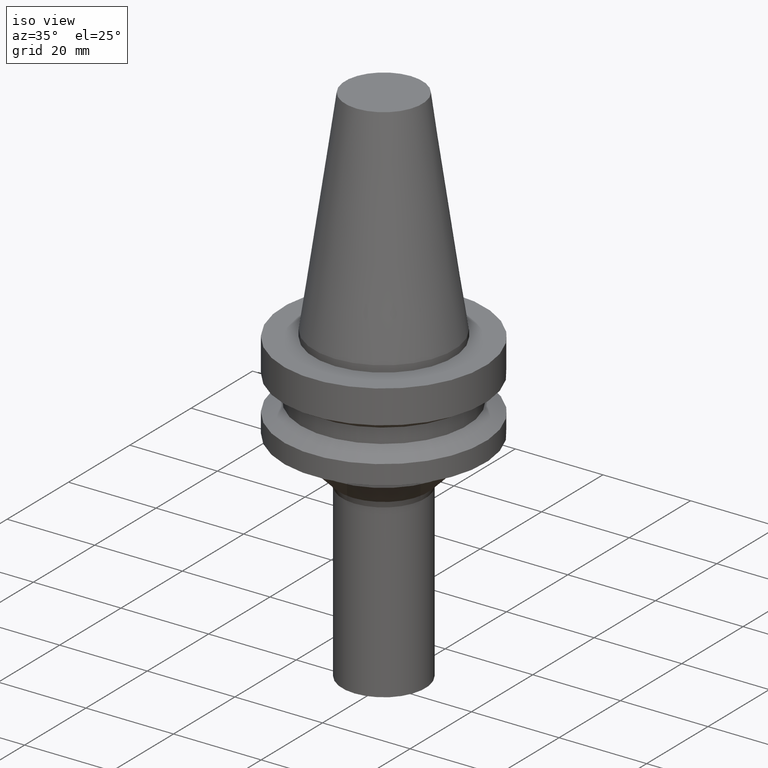
[diagram: clean part render]
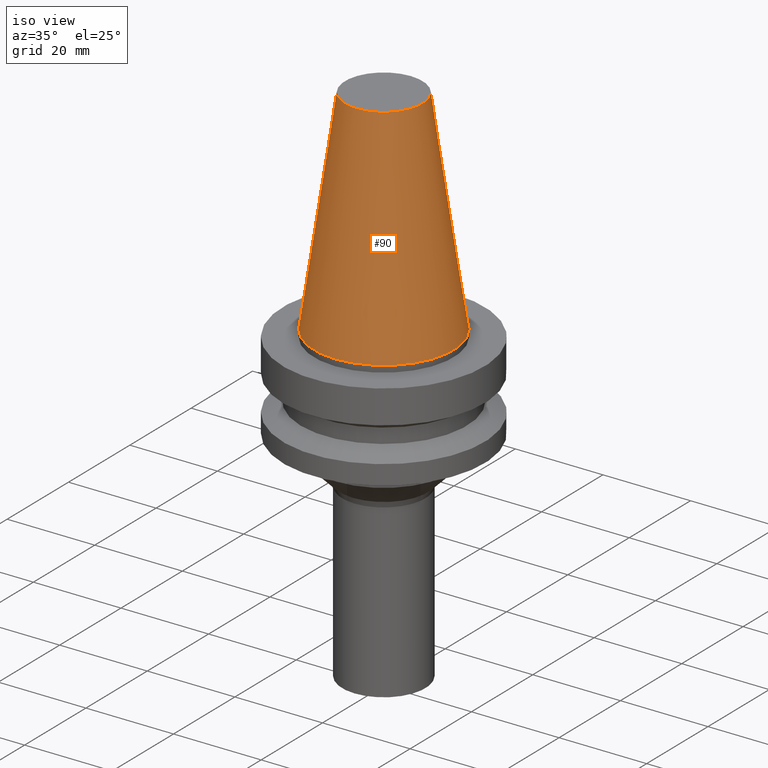
[diagram: tour spotlight — one face highlighted and labeled with its STEP entity id]
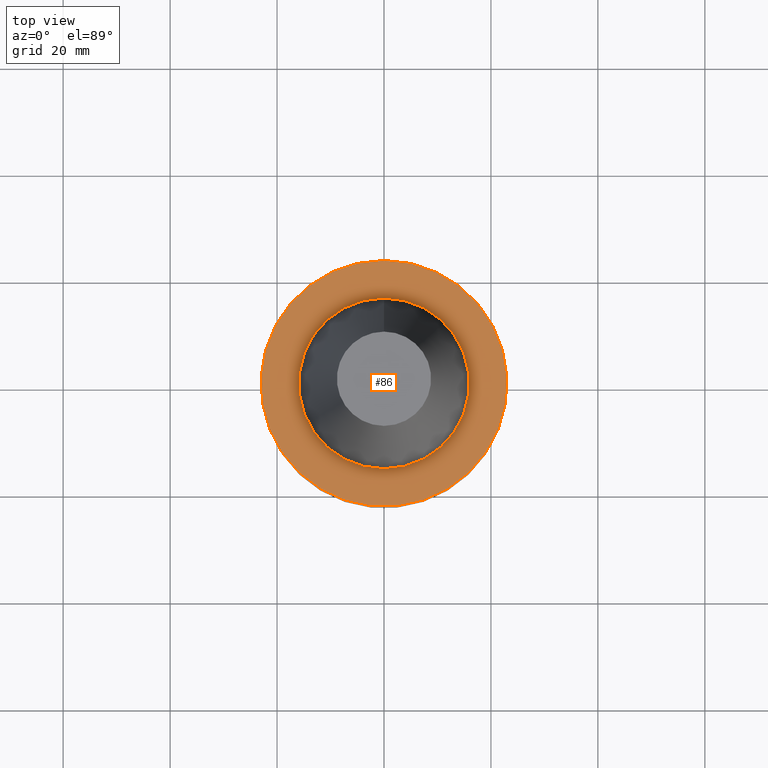
[diagram: tour spotlight — one face highlighted and labeled with its STEP entity id]
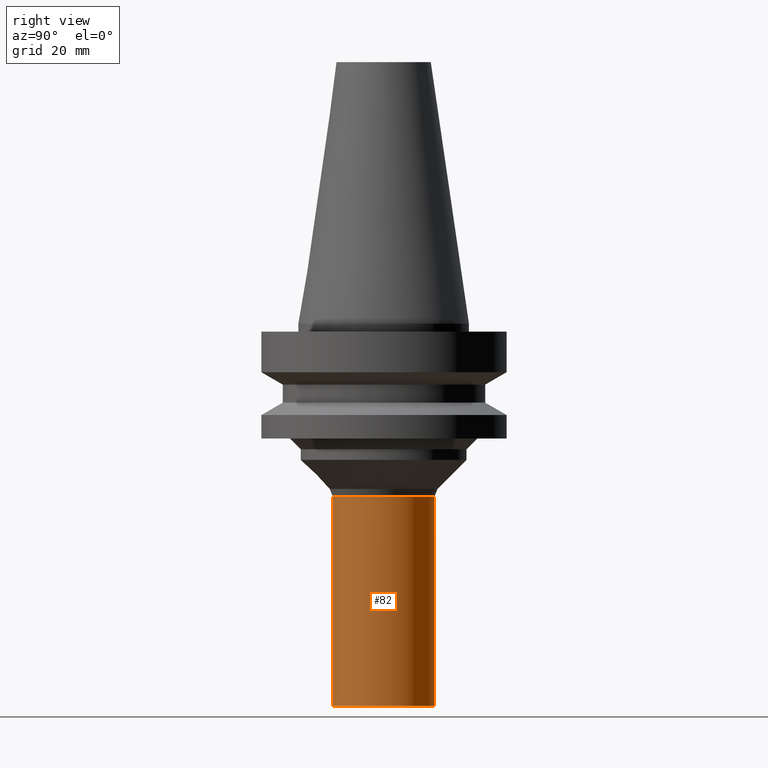
[diagram: tour spotlight — one face highlighted and labeled with its STEP entity id]
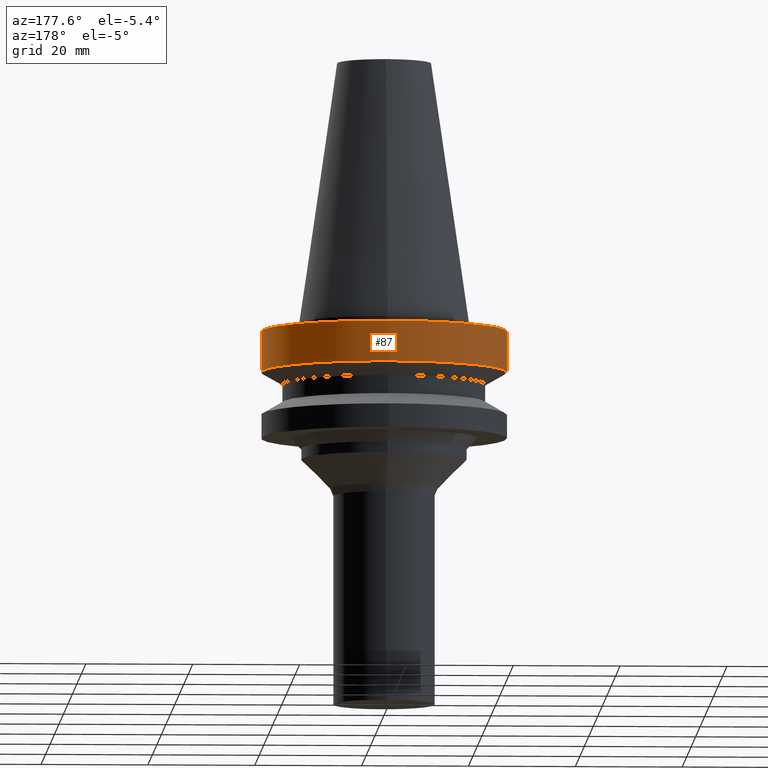
[diagram: tour spotlight — one face highlighted and labeled with its STEP entity id]
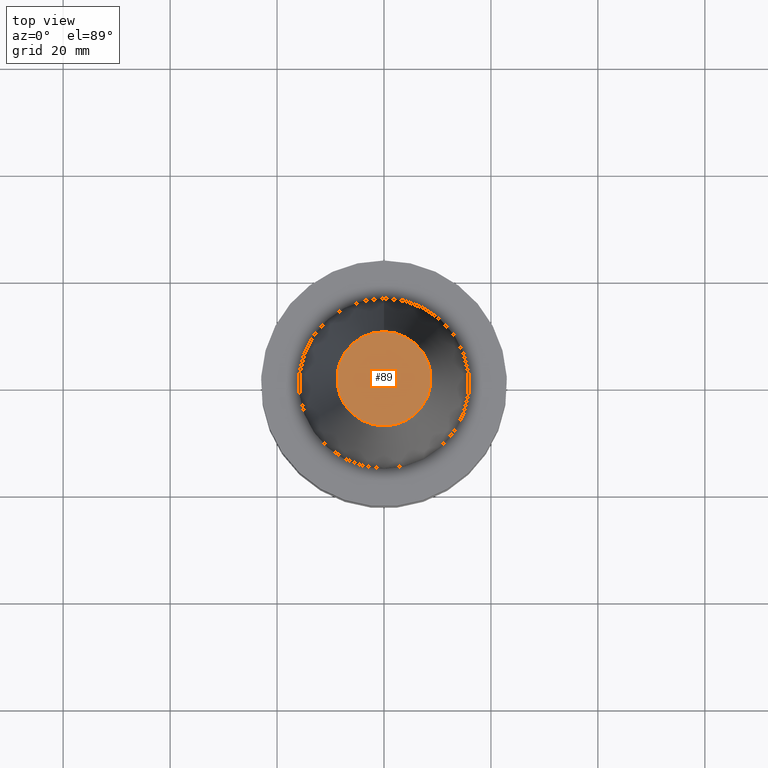
[diagram: tour spotlight — one face highlighted and labeled with its STEP entity id]
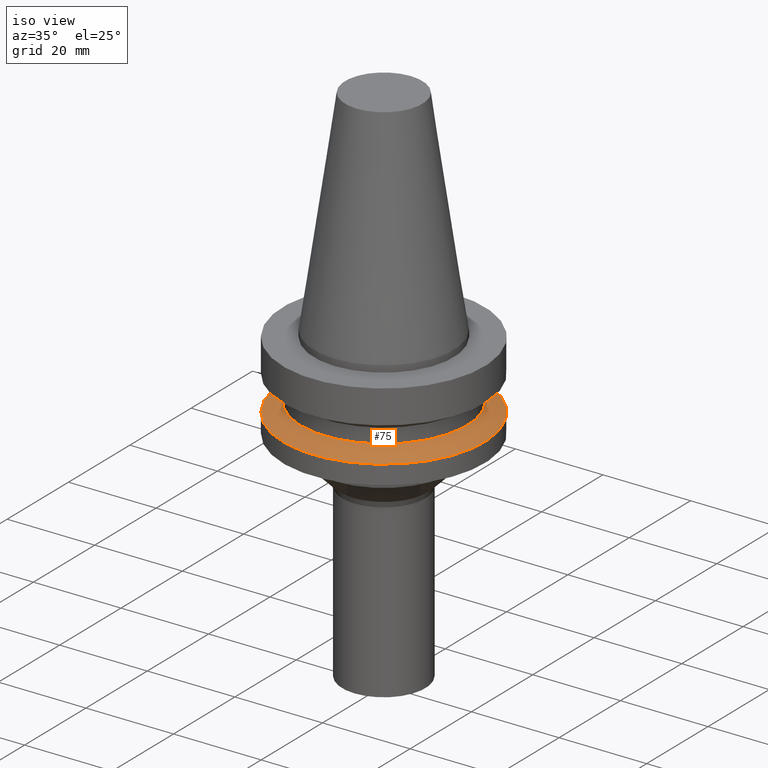
[diagram: tour spotlight — one face highlighted and labeled with its STEP entity id]
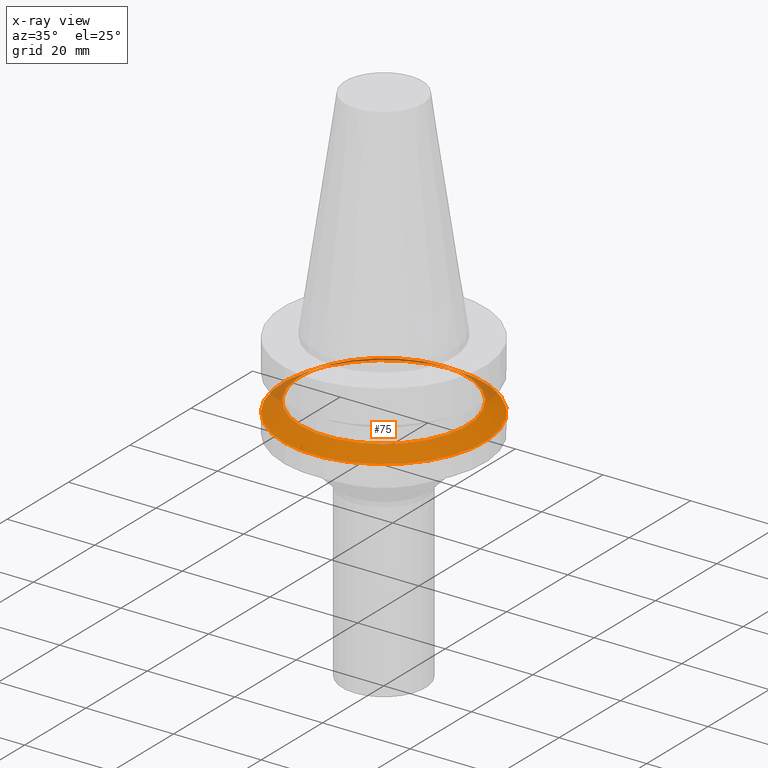
[diagram: x-ray of the same camera — body ghosted, this tour face saturated]
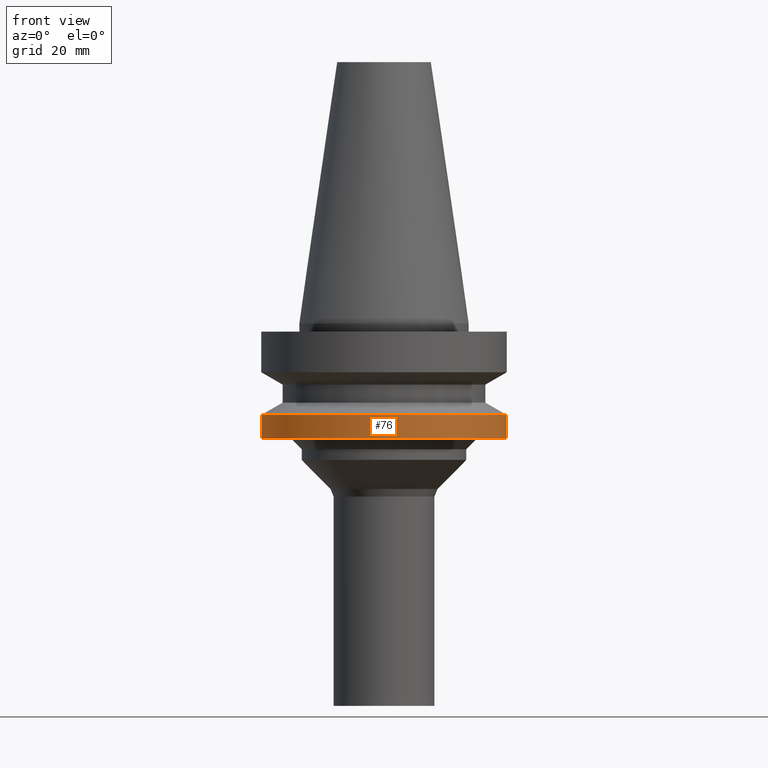
[diagram: tour spotlight — one face highlighted and labeled with its STEP entity id]
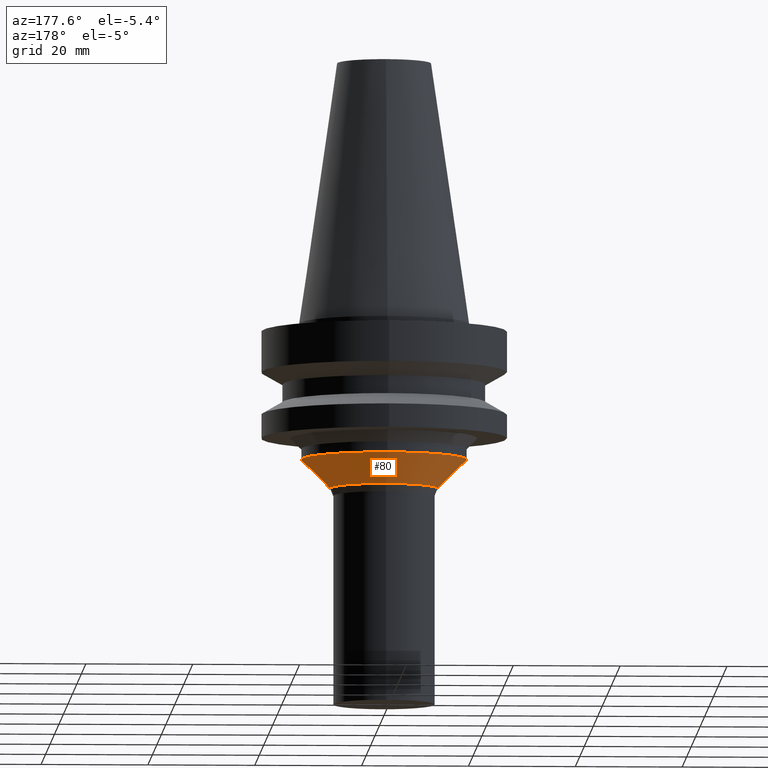
[diagram: tour spotlight — one face highlighted and labeled with its STEP entity id]
A machine part: a face-by-face anatomy tour. The part has 16 B-rep faces; the first image is the clean iso view, then the 8 largest visible faces are spotlighted one at a time (largest first), each with its STEP entity span.

Face 1 — iso view, entity #90. In plain terms, the highlighted conical surface has half-angle 8.297 deg.
Definition (entity closure, byte-faithful):
#90=ADVANCED_FACE('',(#135,#136),#137,.T.);
#135=FACE_BOUND('',#181,.T.);
#136=FACE_BOUND('',#182,.T.);
#137=CONICAL_SURFACE('',#183,12.3822097314519,0.14481587303071);
#181=EDGE_LOOP('',(#257));
#182=EDGE_LOOP('',(#258));
#183=AXIS2_PLACEMENT_3D('',#259,#260,#261);
#257=ORIENTED_EDGE('',*,*,#273,.F.);
#258=ORIENTED_EDGE('',*,*,#276,.T.);
#259=CARTESIAN_POINT('',(-1.46651454197896E-015,-2.93302908395791E-015,23.95));
#260=DIRECTION('',(6.12323399573677E-017,1.22464679914735E-016,-1.0));
#261=DIRECTION('',(-1.23259516440783E-032,1.0,1.22464679914735E-016));
#273=EDGE_CURVE('',#299,#299,#300,.T.);
#276=EDGE_CURVE('',#305,#305,#306,.T.);
#299=VERTEX_POINT('',#329);
#300=CIRCLE('',#330,15.947919);
#305=VERTEX_POINT('',#335);
#306=CIRCLE('',#336,8.8165004629038);
#329=CARTESIAN_POINT('',(3.06161699786833E-017,15.947919,-0.499999999999992));
#330=AXIS2_PLACEMENT_3D('',#370,#371,#372);
#335=CARTESIAN_POINT('',(-2.9636452539366E-015,8.81650046290379,48.4));
#336=AXIS2_PLACEMENT_3D('',#379,#380,#381);
#370=CARTESIAN_POINT('',(3.06161699786834E-017,6.12323399573668E-017,-0.499999999999993));
#371=DIRECTION('',(6.12323399573677E-017,1.22464679914735E-016,-1.0));
#372=DIRECTION('',(-1.23259516440783E-032,1.0,1.22464679914735E-016));
#379=CARTESIAN_POINT('',(-2.9636452539366E-015,-5.92729050787319E-015,48.4));
#380=DIRECTION('',(6.12323399573677E-017,1.22464679914735E-016,-1.0));
#381=DIRECTION('',(-1.23259516440783E-032,1.0,1.22464679914735E-016));

Face 2 — top view, entity #86. In plain terms, the highlighted planar face has unit normal (-0, -0, 1).
Definition (entity closure, byte-faithful):
#86=ADVANCED_FACE('',(#124,#125),#126,.T.);
#124=FACE_OUTER_BOUND('',#170,.T.);
#125=FACE_BOUND('',#171,.T.);
#126=PLANE('',#172);
#170=EDGE_LOOP('',(#238));
#171=EDGE_LOOP('',(#239));
#172=AXIS2_PLACEMENT_3D('',#240,#241,#242);
#238=ORIENTED_EDGE('',*,*,#274,.F.);
#239=ORIENTED_EDGE('',*,*,#272,.T.);
#240=CARTESIAN_POINT('',(1.22464679914735E-016,19.4739594999998,-2.0));
#241=DIRECTION('',(-6.12323399573677E-017,-1.22464679914735E-016,1.0));
#242=DIRECTION('',(1.23259516440783E-032,-1.0,-1.22464679914735E-016));
#272=EDGE_CURVE('',#297,#297,#298,.T.);
#274=EDGE_CURVE('',#301,#301,#302,.T.);
#297=VERTEX_POINT('',#327);
#298=CIRCLE('',#328,15.9479189999996);
#301=VERTEX_POINT('',#331);
#302=CIRCLE('',#332,23.0);
#327=CARTESIAN_POINT('',(1.22464679914735E-016,15.9479189999996,-2.0));
#328=AXIS2_PLACEMENT_3D('',#367,#368,#369);
#331=CARTESIAN_POINT('',(1.22464679914735E-016,23.0,-2.0));
#332=AXIS2_PLACEMENT_3D('',#373,#374,#375);
#367=CARTESIAN_POINT('',(1.22464679914735E-016,2.44929359829471E-016,-2.0));
#368=DIRECTION('',(6.12323399573677E-017,1.22464679914735E-016,-1.0));
#369=DIRECTION('',(-1.23259516440783E-032,1.0,1.22464679914735E-016));
#373=CARTESIAN_POINT('',(1.22464679914735E-016,2.44929359829471E-016,-2.0));
#374=DIRECTION('',(6.12323399573677E-017,1.22464679914735E-016,-1.0));
#375=DIRECTION('',(-1.23259516440783E-032,1.0,1.22464679914735E-016));

Face 3 — right view, entity #82. In plain terms, the highlighted cylindrical surface (bore or boss wall) has radius 9.5 mm, axis along (-0, -0, 1).
Definition (entity closure, byte-faithful):
#82=ADVANCED_FACE('',(#113,#114),#115,.T.);
#113=FACE_BOUND('',#159,.T.);
#114=FACE_BOUND('',#160,.T.);
#115=CYLINDRICAL_SURFACE('',#161,9.5);
#159=EDGE_LOOP('',(#219));
#160=EDGE_LOOP('',(#220));
#161=AXIS2_PLACEMENT_3D('',#221,#222,#223);
#219=ORIENTED_EDGE('',*,*,#270,.F.);
#220=ORIENTED_EDGE('',*,*,#269,.T.);
#221=CARTESIAN_POINT('',(3.20944493963005E-015,6.4188898792601E-015,-52.4142135));
#222=DIRECTION('',(-6.12323399573677E-017,-1.22464679914735E-016,1.0));
#223=DIRECTION('',(-1.23259516440783E-032,1.0,1.22464679914735E-016));
#269=EDGE_CURVE('',#291,#291,#292,.T.);
#270=EDGE_CURVE('',#293,#293,#294,.T.);
#291=VERTEX_POINT('',#321);
#292=CIRCLE('',#322,9.5);
#293=VERTEX_POINT('',#323);
#294=CIRCLE('',#324,9.5);
#321=CARTESIAN_POINT('',(2.01016140232963E-015,9.5,-32.828427));
#322=AXIS2_PLACEMENT_3D('',#358,#359,#360);
#323=CARTESIAN_POINT('',(4.40872847693047E-015,9.50000000000001,-72.0));
#324=AXIS2_PLACEMENT_3D('',#361,#362,#363);
#358=CARTESIAN_POINT('',(2.01016140232963E-015,4.02032280465925E-015,-32.828427));
#359=DIRECTION('',(6.12323399573677E-017,1.22464679914735E-016,-1.0));
#360=DIRECTION('',(-1.23259516440783E-032,1.0,1.22464679914735E-016));
#361=CARTESIAN_POINT('',(4.40872847693047E-015,8.81745695386094E-015,-72.0));
#362=DIRECTION('',(6.12323399573677E-017,1.22464679914735E-016,-1.0));
#363=DIRECTION('',(-1.23259516440783E-032,1.0,1.22464679914735E-016));

Face 4 — auxiliary view, entity #87. In plain terms, the highlighted cylindrical surface (bore or boss wall) has radius 23 mm, axis along (-0, -0, 1).
Definition (entity closure, byte-faithful):
#87=ADVANCED_FACE('',(#127,#128),#129,.T.);
#127=FACE_BOUND('',#173,.T.);
#128=FACE_BOUND('',#174,.T.);
#129=CYLINDRICAL_SURFACE('',#175,23.0);
#173=EDGE_LOOP('',(#243));
#174=EDGE_LOOP('',(#244));
#175=AXIS2_PLACEMENT_3D('',#245,#246,#247);
#243=ORIENTED_EDGE('',*,*,#275,.F.);
#244=ORIENTED_EDGE('',*,*,#274,.T.);
#245=CARTESIAN_POINT('',(3.55147560781314E-016,7.10295121562628E-016,-5.79999982082314));
#246=DIRECTION('',(-6.12323399573677E-017,-1.22464679914735E-016,1.0));
#247=DIRECTION('',(-1.23259516440783E-032,1.0,1.22464679914735E-016));
#274=EDGE_CURVE('',#301,#301,#302,.T.);
#275=EDGE_CURVE('',#303,#303,#304,.T.);
#301=VERTEX_POINT('',#331);
#302=CIRCLE('',#332,23.0);
#303=VERTEX_POINT('',#333);
#304=CIRCLE('',#334,23.0);
#331=CARTESIAN_POINT('',(1.22464679914735E-016,23.0,-2.0));
#332=AXIS2_PLACEMENT_3D('',#373,#374,#375);
#333=CARTESIAN_POINT('',(5.87830441647893E-016,23.0,-9.59999964164628));
#334=AXIS2_PLACEMENT_3D('',#376,#377,#378);
#373=CARTESIAN_POINT('',(1.22464679914735E-016,2.44929359829471E-016,-2.0));
#374=DIRECTION('',(6.12323399573677E-017,1.22464679914735E-016,-1.0));
#375=DIRECTION('',(-1.23259516440783E-032,1.0,1.22464679914735E-016));
#376=CARTESIAN_POINT('',(5.87830441647893E-016,1.17566088329579E-015,-9.59999964164628));
#377=DIRECTION('',(6.12323399573677E-017,1.22464679914735E-016,-1.0));
#378=DIRECTION('',(-1.23259516440783E-032,1.0,1.22464679914735E-016));

Face 5 — top view, entity #89. In plain terms, the highlighted planar face has unit normal (-0, -0, 1).
Definition (entity closure, byte-faithful):
#89=ADVANCED_FACE('',(#133),#134,.T.);
#133=FACE_OUTER_BOUND('',#179,.T.);
#134=PLANE('',#180);
#179=EDGE_LOOP('',(#253));
#180=AXIS2_PLACEMENT_3D('',#254,#255,#256);
#253=ORIENTED_EDGE('',*,*,#276,.F.);
#254=CARTESIAN_POINT('',(-2.9636452539366E-015,4.40825023145189,48.4));
#255=DIRECTION('',(-6.12323399573677E-017,-1.22464679914735E-016,1.0));
#256=DIRECTION('',(1.23259516440783E-032,-1.0,-1.22464679914735E-016));
#276=EDGE_CURVE('',#305,#305,#306,.T.);
#305=VERTEX_POINT('',#335);
#306=CIRCLE('',#336,8.8165004629038);
#335=CARTESIAN_POINT('',(-2.9636452539366E-015,8.81650046290379,48.4));
#336=AXIS2_PLACEMENT_3D('',#379,#380,#381);
#379=CARTESIAN_POINT('',(-2.9636452539366E-015,-5.92729050787319E-015,48.4));
#380=DIRECTION('',(6.12323399573677E-017,1.22464679914735E-016,-1.0));
#381=DIRECTION('',(-1.23259516440783E-032,1.0,1.22464679914735E-016));

Face 6 — iso view, entity #75. An x-ray twin of the same camera follows (body ghosted, this face saturated) — the face is partly hidden behind the body. In plain terms, the highlighted conical surface has half-angle 60 deg.
Definition (entity closure, byte-faithful):
#75=ADVANCED_FACE('',(#92,#93),#94,.T.);
#92=FACE_BOUND('',#138,.T.);
#93=FACE_BOUND('',#139,.T.);
#94=CONICAL_SURFACE('',#140,21.0,1.04719746294071);
#138=EDGE_LOOP('',(#184));
#139=EDGE_LOOP('',(#185));
#140=AXIS2_PLACEMENT_3D('',#186,#187,#188);
#184=ORIENTED_EDGE('',*,*,#262,.F.);
#185=ORIENTED_EDGE('',*,*,#263,.T.);
#186=CARTESIAN_POINT('',(1.00698415131677E-015,2.01396830263355E-015,-16.4452992000285));
#187=DIRECTION('',(6.12323399573677E-017,1.22464679914735E-016,-1.0));
#188=DIRECTION('',(-1.23259516440783E-032,1.0,1.22464679914735E-016));
#262=EDGE_CURVE('',#277,#277,#278,.T.);
#263=EDGE_CURVE('',#279,#279,#280,.T.);
#277=VERTEX_POINT('',#307);
#278=CIRCLE('',#308,23.0);
#279=VERTEX_POINT('',#309);
#280=CIRCLE('',#310,19.0);
#307=CARTESIAN_POINT('',(1.07768918164274E-015,23.0,-17.5999999737568));
#308=AXIS2_PLACEMENT_3D('',#337,#338,#339);
#309=CARTESIAN_POINT('',(9.36279120990808E-016,19.0,-15.2905984263003));
#310=AXIS2_PLACEMENT_3D('',#340,#341,#342);
#337=CARTESIAN_POINT('',(1.07768918164274E-015,2.15537836328548E-015,-17.5999999737568));
#338=DIRECTION('',(6.12323399573677E-017,1.22464679914735E-016,-1.0));
#339=DIRECTION('',(-1.23259516440783E-032,1.0,1.22464679914735E-016));
#340=CARTESIAN_POINT('',(9.36279120990809E-016,1.87255824198162E-015,-15.2905984263003));
#341=DIRECTION('',(6.12323399573677E-017,1.22464679914735E-016,-1.0));
#342=DIRECTION('',(-1.23259516440783E-032,1.0,1.22464679914735E-016));

Face 7 — front view, entity #76. In plain terms, the highlighted cylindrical surface (bore or boss wall) has radius 23 mm, axis along (-0, -0, 1).
Definition (entity closure, byte-faithful):
#76=ADVANCED_FACE('',(#95,#96),#97,.T.);
#95=FACE_BOUND('',#141,.T.);
#96=FACE_BOUND('',#142,.T.);
#97=CYLINDRICAL_SURFACE('',#143,23.0);
#141=EDGE_LOOP('',(#189));
#142=EDGE_LOOP('',(#190));
#143=AXIS2_PLACEMENT_3D('',#191,#192,#193);
#189=ORIENTED_EDGE('',*,*,#264,.F.);
#190=ORIENTED_EDGE('',*,*,#262,.T.);
#191=CARTESIAN_POINT('',(1.21240033035241E-015,2.42480066070483E-015,-19.7999999868784));
#192=DIRECTION('',(-6.12323399573677E-017,-1.22464679914735E-016,1.0));
#193=DIRECTION('',(-1.23259516440783E-032,1.0,1.22464679914735E-016));
#262=EDGE_CURVE('',#277,#277,#278,.T.);
#264=EDGE_CURVE('',#281,#281,#282,.T.);
#277=VERTEX_POINT('',#307);
#278=CIRCLE('',#308,23.0);
#281=VERTEX_POINT('',#311);
#282=CIRCLE('',#312,23.0);
#307=CARTESIAN_POINT('',(1.07768918164274E-015,23.0,-17.5999999737568));
#308=AXIS2_PLACEMENT_3D('',#337,#338,#339);
#311=CARTESIAN_POINT('',(1.34711147906209E-015,23.0,-22.0));
#312=AXIS2_PLACEMENT_3D('',#343,#344,#345);
#337=CARTESIAN_POINT('',(1.07768918164274E-015,2.15537836328548E-015,-17.5999999737568));
#338=DIRECTION('',(6.12323399573677E-017,1.22464679914735E-016,-1.0));
#339=DIRECTION('',(-1.23259516440783E-032,1.0,1.22464679914735E-016));
#343=CARTESIAN_POINT('',(1.34711147906209E-015,2.69422295812418E-015,-22.0));
#344=DIRECTION('',(6.12323399573677E-017,1.22464679914735E-016,-1.0));
#345=DIRECTION('',(-1.23259516440783E-032,1.0,1.22464679914735E-016));

Face 8 — auxiliary view, entity #80. In plain terms, the highlighted conical surface has half-angle 45 deg.
Definition (entity closure, byte-faithful):
#80=ADVANCED_FACE('',(#107,#108),#109,.T.);
#107=FACE_BOUND('',#153,.T.);
#108=FACE_BOUND('',#154,.T.);
#109=CONICAL_SURFACE('',#155,12.792893174709,0.785398163397448);
#153=EDGE_LOOP('',(#209));
#154=EDGE_LOOP('',(#210));
#155=AXIS2_PLACEMENT_3D('',#211,#212,#213);
#209=ORIENTED_EDGE('',*,*,#268,.F.);
#210=ORIENTED_EDGE('',*,*,#267,.T.);
#211=CARTESIAN_POINT('',(1.75780332431868E-015,3.51560664863736E-015,-28.7071068252909));
#212=DIRECTION('',(-6.12323399573677E-017,-1.22464679914735E-016,1.0));
#213=DIRECTION('',(-1.23259516440783E-032,1.0,1.22464679914735E-016));
#267=EDGE_CURVE('',#287,#287,#288,.T.);
#268=EDGE_CURVE('',#289,#289,#290,.T.);
#287=VERTEX_POINT('',#317);
#288=CIRCLE('',#318,15.5);
#289=VERTEX_POINT('',#319);
#290=CIRCLE('',#320,10.0857863494181);
#317=CARTESIAN_POINT('',(1.59204083889156E-015,15.5,-25.9999999999999));
#318=AXIS2_PLACEMENT_3D('',#352,#353,#354);
#319=CARTESIAN_POINT('',(1.92356580974581E-015,10.0857863494181,-31.4142136505819));
#320=AXIS2_PLACEMENT_3D('',#355,#356,#357);
#352=CARTESIAN_POINT('',(1.59204083889156E-015,3.18408167778311E-015,-25.9999999999999));
#353=DIRECTION('',(6.12323399573677E-017,1.22464679914735E-016,-1.0));
#354=DIRECTION('',(-1.23259516440783E-032,1.0,1.22464679914735E-016));
#355=CARTESIAN_POINT('',(1.92356580974581E-015,3.84713161949162E-015,-31.4142136505819));
#356=DIRECTION('',(6.12323399573677E-017,1.22464679914735E-016,-1.0));
#357=DIRECTION('',(-1.23259516440783E-032,1.0,1.22464679914735E-016));